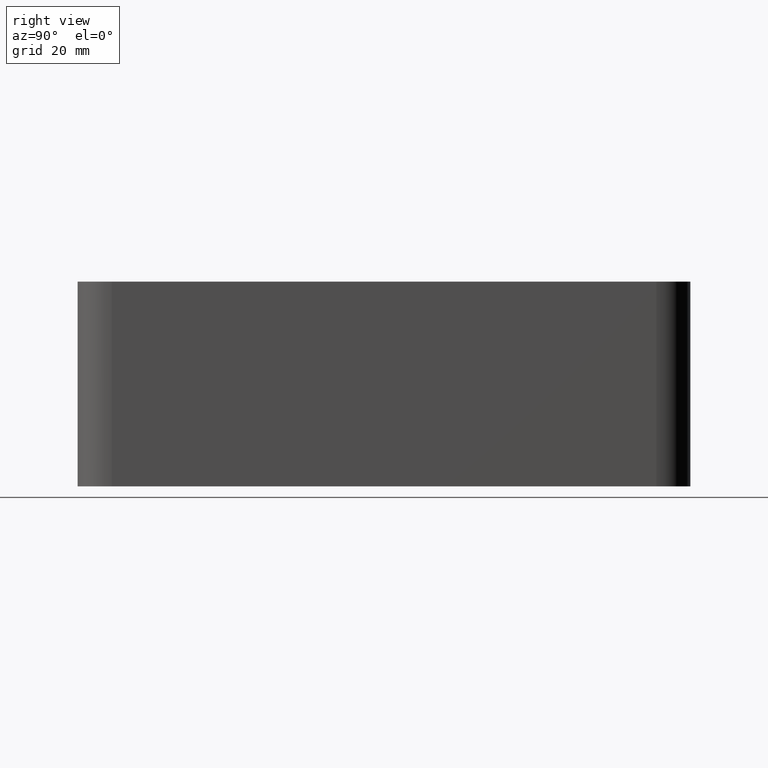
[diagram: clean part render]
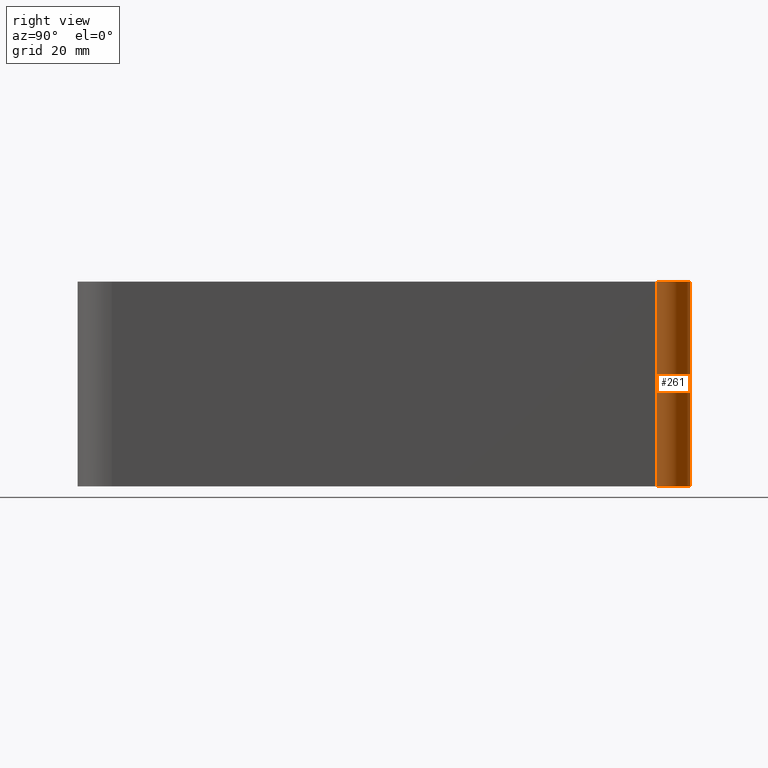
[diagram: same view with one face highlighted and labeled with its STEP entity id]
A machine part, right view. The second image highlights one B-rep face of the part: STEP entity #261.
In plain terms, the highlighted cylindrical surface (edge-blend (fillet) strip) has radius 10 mm, axis along (0, 0, -1).
Its self-contained STEP definition (entity closure, byte-faithful):
#17=CIRCLE('',#296,10.);
#18=CIRCLE('',#297,10.);
#25=CYLINDRICAL_SURFACE('',#295,10.);
#33=FACE_OUTER_BOUND('',#47,.T.);
#47=EDGE_LOOP('',(#191,#192,#193,#194));
#71=LINE('',#417,#99);
#72=LINE('',#420,#100);
#99=VECTOR('',#339,10.);
#100=VECTOR('',#342,10.);
#123=VERTEX_POINT('',#413);
#124=VERTEX_POINT('',#414);
#125=VERTEX_POINT('',#416);
#126=VERTEX_POINT('',#418);
#151=EDGE_CURVE('',#123,#124,#17,.T.);
#152=EDGE_CURVE('',#124,#125,#71,.T.);
#153=EDGE_CURVE('',#125,#126,#18,.T.);
#154=EDGE_CURVE('',#126,#123,#72,.T.);
#191=ORIENTED_EDGE('',*,*,#151,.T.);
#192=ORIENTED_EDGE('',*,*,#152,.T.);
#193=ORIENTED_EDGE('',*,*,#153,.T.);
#194=ORIENTED_EDGE('',*,*,#154,.T.);
#261=ADVANCED_FACE('',(#33),#25,.T.);
#295=AXIS2_PLACEMENT_3D('',#412,#335,#336);
#296=AXIS2_PLACEMENT_3D('',#415,#337,#338);
#297=AXIS2_PLACEMENT_3D('',#419,#340,#341);
#335=DIRECTION('center_axis',(0.,0.,-1.));
#336=DIRECTION('ref_axis',(0.707106781186547,0.707106781186547,0.));
#337=DIRECTION('center_axis',(0.,0.,1.));
#338=DIRECTION('ref_axis',(0.707106781186547,0.707106781186547,0.));
#339=DIRECTION('',(0.,0.,1.));
#340=DIRECTION('center_axis',(0.,0.,-1.));
#341=DIRECTION('ref_axis',(0.707106781186547,0.707106781186547,0.));
#342=DIRECTION('',(0.,0.,-1.));
#412=CARTESIAN_POINT('Origin',(40.2500000000001,79.7500000000002,0.));
#413=CARTESIAN_POINT('',(50.2500000000001,79.7500000000002,-60.));
#414=CARTESIAN_POINT('',(40.2500000000001,89.7500000000002,-60.));
#415=CARTESIAN_POINT('Origin',(40.2500000000001,79.7500000000002,-60.));
#416=CARTESIAN_POINT('',(40.2500000000001,89.7500000000002,0.));
#417=CARTESIAN_POINT('',(40.2500000000001,89.7500000000002,0.));
#418=CARTESIAN_POINT('',(50.2500000000001,79.7500000000002,0.));
#419=CARTESIAN_POINT('Origin',(40.2500000000001,79.7500000000002,0.));
#420=CARTESIAN_POINT('',(50.2500000000001,79.7500000000002,0.));